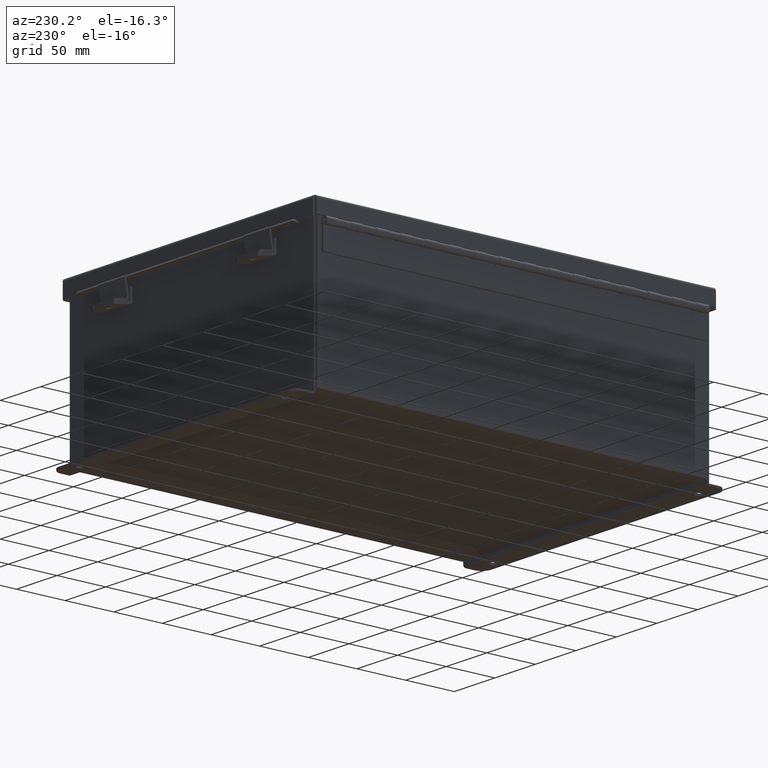
[diagram: clean part render]
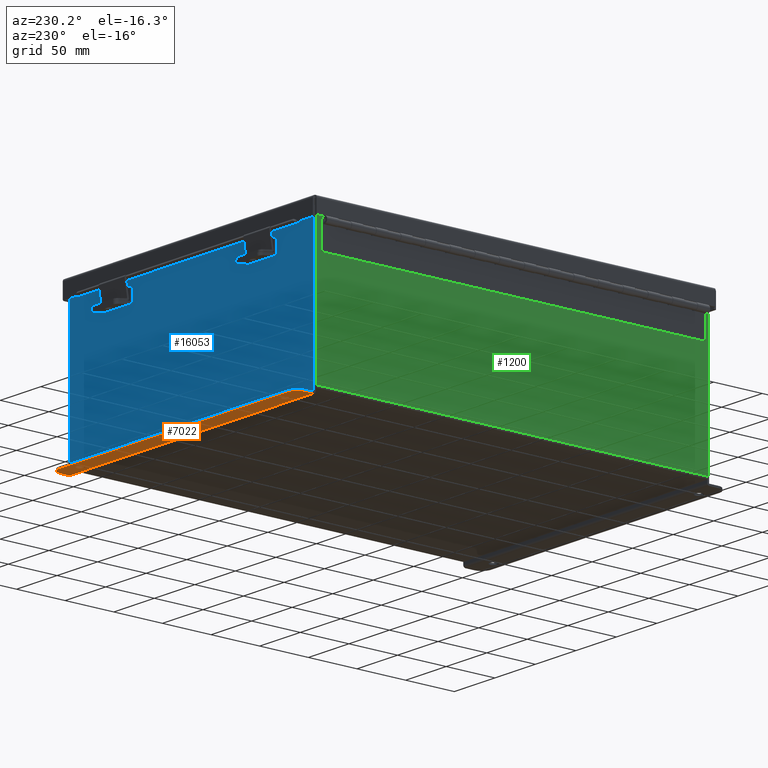
[diagram: same view with three faces highlighted in distinct colors, each labeled with its STEP entity id]
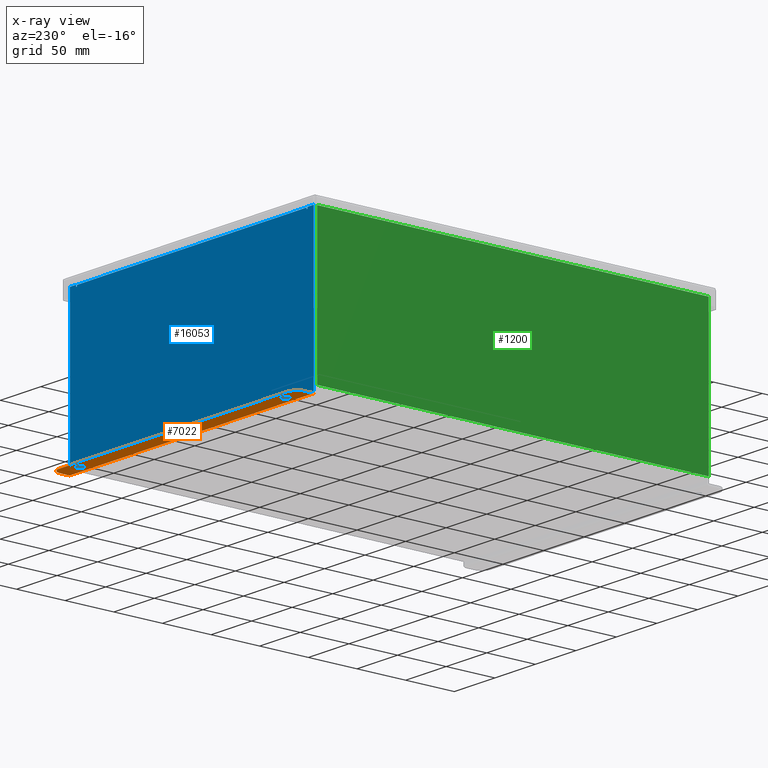
[diagram: x-ray of the same camera — body ghosted, the three highlighted faces saturated]
A machine part, auxiliary view with three faces highlighted in distinct colors.
The next image is the same camera in x-ray (body ghosted, the three faces saturated) — at least one of them is partly hidden behind the body in this view.
Their STEP definitions:

[orange] entity #7022 — the highlighted planar face has unit normal (0, 0, 1).
#155 = LINE ( 'NONE', #9661, #19866 ) ;
#272 = AXIS2_PLACEMENT_3D ( 'NONE', #4878, #6448, #17335 ) ;
#623 = VERTEX_POINT ( 'NONE', #7105 ) ;
#817 = CARTESIAN_POINT ( 'NONE',  ( -4.987800000000000900, 0.5187999999999999300, -3.187000000000001600 ) ) ;
#1073 = CARTESIAN_POINT ( 'NONE',  ( 5.550299999999999100, 0.7378000000000000100, -3.187000000000002900 ) ) ;
#1272 = ORIENTED_EDGE ( 'NONE', *, *, #8311, .T. ) ;
#1381 = EDGE_CURVE ( 'NONE', #17163, #11149, #16518, .T. ) ;
#1383 = ORIENTED_EDGE ( 'NONE', *, *, #16824, .T. ) ;
#1742 = VERTEX_POINT ( 'NONE', #5607 ) ;
#1805 = ORIENTED_EDGE ( 'NONE', *, *, #9340, .F. ) ;
#2214 = CIRCLE ( 'NONE', #12566, 0.1560000000000001900 ) ;
#2275 = CIRCLE ( 'NONE', #18430, 0.3750000000000000600 ) ;
#2625 = VERTEX_POINT ( 'NONE', #817 ) ;
#2628 = AXIS2_PLACEMENT_3D ( 'NONE', #13991, #4668, #15564 ) ;
#2710 = CARTESIAN_POINT ( 'NONE',  ( 4.987799999999998200, 0.5187999999999999300, -3.187000000000001600 ) ) ;
#3530 = DIRECTION ( 'NONE',  ( 0.0000000000000000000, -3.702694488566362300E-015, -1.000000000000000000 ) ) ;
#4027 = ORIENTED_EDGE ( 'NONE', *, *, #6646, .T. ) ;
#4214 = EDGE_CURVE ( 'NONE', #1742, #2625, #5197, .T. ) ;
#4438 = EDGE_LOOP ( 'NONE', ( #1383, #4027, #1272, #7700, #8093, #17056 ) ) ;
#4521 = FACE_BOUND ( 'NONE', #8711, .T. ) ;
#4586 = AXIS2_PLACEMENT_3D ( 'NONE', #15931, #6581, #17480 ) ;
#4668 = DIRECTION ( 'NONE',  ( 0.0000000000000000000, -3.702694488566362300E-015, -1.000000000000000000 ) ) ;
#4878 = CARTESIAN_POINT ( 'NONE',  ( 0.0000000000000000000, -1.092739197465705300E-014, -3.187000000000000300 ) ) ;
#4943 = EDGE_CURVE ( 'NONE', #19681, #19867, #2275, .T. ) ;
#5001 = FACE_OUTER_BOUND ( 'NONE', #4438, .T. ) ;
#5181 = DIRECTION ( 'NONE',  ( 1.000000000000000000, 0.0000000000000000000, -0.0000000000000000000 ) ) ;
#5197 = CIRCLE ( 'NONE', #4586, 0.1560000000000001900 ) ;
#5279 = CARTESIAN_POINT ( 'NONE',  ( -5.550299999999999100, 0.3627999999999997300, -3.187000000000001200 ) ) ;
#5497 = CARTESIAN_POINT ( 'NONE',  ( 5.550299999999999100, 0.3627999999999997300, -3.187000000000001200 ) ) ;
#5607 = CARTESIAN_POINT ( 'NONE',  ( -4.987800000000000900, 0.2067999999999996000, -3.187000000000000700 ) ) ;
#6238 = EDGE_CURVE ( 'NONE', #10296, #13554, #7561, .T. ) ;
#6293 = VERTEX_POINT ( 'NONE', #1073 ) ;
#6379 = CARTESIAN_POINT ( 'NONE',  ( 4.987799999999998200, 0.2067999999999996000, -3.187000000000000700 ) ) ;
#6393 = ORIENTED_EDGE ( 'NONE', *, *, #6238, .F. ) ;
#6448 = DIRECTION ( 'NONE',  ( 0.0000000000000000000, 3.702694488566362300E-015, 1.000000000000000000 ) ) ;
#6502 = EDGE_CURVE ( 'NONE', #17163, #19681, #19776, .T. ) ;
#6572 = EDGE_CURVE ( 'NONE', #13554, #10296, #2214, .T. ) ;
#6581 = DIRECTION ( 'NONE',  ( 0.0000000000000000000, -3.702694488566362300E-015, -1.000000000000000000 ) ) ;
#6646 = EDGE_CURVE ( 'NONE', #6293, #623, #17290, .T. ) ;
#6839 = DIRECTION ( 'NONE',  ( 0.0000000000000000000, -1.000000000000000000, 4.370956789862820400E-015 ) ) ;
#7022 = ADVANCED_FACE ( 'NONE', ( #4521, #16976, #5001 ), #15786, .F. ) ;
#7072 = DIRECTION ( 'NONE',  ( 0.0000000000000000000, -1.000000000000000000, 4.370956789862820400E-015 ) ) ;
#7105 = CARTESIAN_POINT ( 'NONE',  ( 5.925299999999999100, 0.3627999999999997300, -3.187000000000001200 ) ) ;
#7407 = LINE ( 'NONE', #16094, #19378 ) ;
#7561 = CIRCLE ( 'NONE', #7746, 0.1560000000000001900 ) ;
#7580 = EDGE_LOOP ( 'NONE', ( #6393, #13271 ) ) ;
#7630 = CARTESIAN_POINT ( 'NONE',  ( 5.925299999999999100, 0.01300000000000010700, -3.187000000000000300 ) ) ;
#7700 = ORIENTED_EDGE ( 'NONE', *, *, #1381, .F. ) ;
#7746 = AXIS2_PLACEMENT_3D ( 'NONE', #18049, #8709, #19647 ) ;
#8093 = ORIENTED_EDGE ( 'NONE', *, *, #6502, .T. ) ;
#8311 = EDGE_CURVE ( 'NONE', #623, #11149, #155, .T. ) ;
#8709 = DIRECTION ( 'NONE',  ( 0.0000000000000000000, -3.702694488566362300E-015, -1.000000000000000000 ) ) ;
#8711 = EDGE_LOOP ( 'NONE', ( #1805, #16993 ) ) ;
#9340 = EDGE_CURVE ( 'NONE', #2625, #1742, #10507, .T. ) ;
#9661 = CARTESIAN_POINT ( 'NONE',  ( 5.925299999999999100, -1.092739197465705300E-014, -3.187000000000000300 ) ) ;
#10296 = VERTEX_POINT ( 'NONE', #2710 ) ;
#10507 = CIRCLE ( 'NONE', #2628, 0.1560000000000001900 ) ;
#10856 = CARTESIAN_POINT ( 'NONE',  ( -5.550299999999999100, 0.7378000000000000100, -3.187000000000002900 ) ) ;
#11149 = VERTEX_POINT ( 'NONE', #7630 ) ;
#11424 = VECTOR ( 'NONE', #18576, 39.37007874015748100 ) ;
#11430 = DIRECTION ( 'NONE',  ( 1.000000000000000000, -0.0000000000000000000, -0.0000000000000000000 ) ) ;
#12340 = VECTOR ( 'NONE', #11430, 39.37007874015748100 ) ;
#12566 = AXIS2_PLACEMENT_3D ( 'NONE', #12834, #3530, #14410 ) ;
#12834 = CARTESIAN_POINT ( 'NONE',  ( 4.987799999999998200, 0.3627999999999997300, -3.187000000000001200 ) ) ;
#13271 = ORIENTED_EDGE ( 'NONE', *, *, #6572, .F. ) ;
#13554 = VERTEX_POINT ( 'NONE', #6379 ) ;
#13991 = CARTESIAN_POINT ( 'NONE',  ( -4.987800000000000900, 0.3627999999999997300, -3.187000000000001200 ) ) ;
#14410 = DIRECTION ( 'NONE',  ( 0.0000000000000000000, 1.000000000000000000, -3.502369222646487000E-015 ) ) ;
#15564 = DIRECTION ( 'NONE',  ( 0.0000000000000000000, 1.000000000000000000, -3.502369222646487000E-015 ) ) ;
#15786 = PLANE ( 'NONE',  #272 ) ;
#15931 = CARTESIAN_POINT ( 'NONE',  ( -4.987800000000000900, 0.3627999999999997300, -3.187000000000001200 ) ) ;
#16094 = CARTESIAN_POINT ( 'NONE',  ( 0.0000000000000000000, 0.7378000000000000100, -3.187000000000002900 ) ) ;
#16180 = DIRECTION ( 'NONE',  ( -0.0000000000000000000, -3.702694488566362300E-015, -1.000000000000000000 ) ) ;
#16412 = DIRECTION ( 'NONE',  ( -0.0000000000000000000, -3.702694488566362300E-015, -1.000000000000000000 ) ) ;
#16518 = LINE ( 'NONE', #19939, #12340 ) ;
#16824 = EDGE_CURVE ( 'NONE', #19867, #6293, #7407, .T. ) ;
#16976 = FACE_BOUND ( 'NONE', #7580, .T. ) ;
#16993 = ORIENTED_EDGE ( 'NONE', *, *, #4214, .F. ) ;
#17035 = CARTESIAN_POINT ( 'NONE',  ( -5.925300000000001800, -1.092739197465705300E-014, -3.187000000000000300 ) ) ;
#17056 = ORIENTED_EDGE ( 'NONE', *, *, #4943, .T. ) ;
#17163 = VERTEX_POINT ( 'NONE', #18399 ) ;
#17290 = CIRCLE ( 'NONE', #19932, 0.3750000000000000600 ) ;
#17335 = DIRECTION ( 'NONE',  ( 0.0000000000000000000, -1.000000000000000000, 3.702694488566362300E-015 ) ) ;
#17480 = DIRECTION ( 'NONE',  ( 0.0000000000000000000, 1.000000000000000000, -3.502369222646487000E-015 ) ) ;
#18049 = CARTESIAN_POINT ( 'NONE',  ( 4.987799999999998200, 0.3627999999999997300, -3.187000000000001200 ) ) ;
#18242 = CARTESIAN_POINT ( 'NONE',  ( -5.925300000000001800, 0.3627999999999997300, -3.187000000000001200 ) ) ;
#18399 = CARTESIAN_POINT ( 'NONE',  ( -5.925300000000000000, 0.01300000000000010700, -3.187000000000000300 ) ) ;
#18430 = AXIS2_PLACEMENT_3D ( 'NONE', #5279, #16180, #6839 ) ;
#18576 = DIRECTION ( 'NONE',  ( 0.0000000000000000000, 1.000000000000000000, -3.702694488566362300E-015 ) ) ;
#19079 = DIRECTION ( 'NONE',  ( 0.0000000000000000000, -1.000000000000000000, 3.702694488566362300E-015 ) ) ;
#19378 = VECTOR ( 'NONE', #5181, 39.37007874015748100 ) ;
#19647 = DIRECTION ( 'NONE',  ( 0.0000000000000000000, 1.000000000000000000, -3.502369222646487000E-015 ) ) ;
#19681 = VERTEX_POINT ( 'NONE', #18242 ) ;
#19776 = LINE ( 'NONE', #17035, #11424 ) ;
#19866 = VECTOR ( 'NONE', #19079, 39.37007874015748100 ) ;
#19867 = VERTEX_POINT ( 'NONE', #10856 ) ;
#19932 = AXIS2_PLACEMENT_3D ( 'NONE', #5497, #16412, #7072 ) ;
#19939 = CARTESIAN_POINT ( 'NONE',  ( 5.925299999999999100, 0.01300000000000010700, -3.187000000000000300 ) ) ;

[blue] entity #16053 — the highlighted planar face has unit normal (0, -1, 0).
#198 = ORIENTED_EDGE ( 'NONE', *, *, #8963, .F. ) ;
#583 = DIRECTION ( 'NONE',  ( 0.0000000000000000000, 0.0000000000000000000, -1.000000000000000000 ) ) ;
#691 = VECTOR ( 'NONE', #9416, 39.37007874015748100 ) ;
#709 = EDGE_CURVE ( 'NONE', #12365, #14331, #2411, .T. ) ;
#714 = VECTOR ( 'NONE', #9046, 39.37007874015748100 ) ;
#843 = CARTESIAN_POINT ( 'NONE',  ( -5.619650000000000000, 0.0000000000000000000, 0.0000000000000000000 ) ) ;
#963 = VERTEX_POINT ( 'NONE', #17789 ) ;
#1199 = ORIENTED_EDGE ( 'NONE', *, *, #2086, .T. ) ;
#1333 = CIRCLE ( 'NONE', #12848, 0.01867500000000003900 ) ;
#1550 = DIRECTION ( 'NONE',  ( 1.000000000000000000, 0.0000000000000000000, 0.0000000000000000000 ) ) ;
#1580 = EDGE_CURVE ( 'NONE', #7307, #14481, #5281, .T. ) ;
#1697 = VERTEX_POINT ( 'NONE', #10532 ) ;
#2003 = CARTESIAN_POINT ( 'NONE',  ( 5.582299999999999200, 0.0000000000000000000, 0.0000000000000000000 ) ) ;
#2076 = CARTESIAN_POINT ( 'NONE',  ( -5.582300000000000900, 2.185478394931410600E-015, 2.912299999999999200 ) ) ;
#2086 = EDGE_CURVE ( 'NONE', #14481, #14331, #14520, .T. ) ;
#2242 = CARTESIAN_POINT ( 'NONE',  ( 5.619649999999937000, 0.0000000000000000000, -1.218404205174261500E-013 ) ) ;
#2411 = LINE ( 'NONE', #11970, #7028 ) ;
#2505 = EDGE_CURVE ( 'NONE', #3242, #8617, #9852, .T. ) ;
#2556 = CARTESIAN_POINT ( 'NONE',  ( -5.925300000000001800, 0.0000000000000000000, 2.925299999999999600 ) ) ;
#2580 = CARTESIAN_POINT ( 'NONE',  ( 5.619650000000000000, 0.0000000000000000000, 2.925299999999999600 ) ) ;
#2723 = ORIENTED_EDGE ( 'NONE', *, *, #709, .F. ) ;
#2831 = EDGE_CURVE ( 'NONE', #7307, #19342, #13277, .T. ) ;
#2875 = LINE ( 'NONE', #2076, #19457 ) ;
#3172 = ORIENTED_EDGE ( 'NONE', *, *, #11152, .T. ) ;
#3242 = VERTEX_POINT ( 'NONE', #13608 ) ;
#3347 = VECTOR ( 'NONE', #12867, 39.37007874015748100 ) ;
#3448 = DIRECTION ( 'NONE',  ( 0.0000000000000000000, -1.000000000000000000, 0.0000000000000000000 ) ) ;
#3579 = CARTESIAN_POINT ( 'NONE',  ( 5.925299999999999100, 0.0000000000000000000, -3.099299999999999900 ) ) ;
#4101 = ORIENTED_EDGE ( 'NONE', *, *, #14871, .F. ) ;
#4759 = AXIS2_PLACEMENT_3D ( 'NONE', #12754, #3448, #14330 ) ;
#4921 = CIRCLE ( 'NONE', #19050, 0.01867500000000003900 ) ;
#5281 = LINE ( 'NONE', #8892, #714 ) ;
#5285 = ORIENTED_EDGE ( 'NONE', *, *, #5619, .T. ) ;
#5461 = ORIENTED_EDGE ( 'NONE', *, *, #2505, .F. ) ;
#5619 = EDGE_CURVE ( 'NONE', #12365, #963, #9049, .T. ) ;
#5775 = CARTESIAN_POINT ( 'NONE',  ( -5.582300000000000000, 0.0000000000000000000, 0.0000000000000000000 ) ) ;
#6154 = ORIENTED_EDGE ( 'NONE', *, *, #17873, .F. ) ;
#6241 = VERTEX_POINT ( 'NONE', #16500 ) ;
#6481 = ORIENTED_EDGE ( 'NONE', *, *, #6768, .F. ) ;
#6768 = EDGE_CURVE ( 'NONE', #6241, #19986, #15359, .T. ) ;
#7028 = VECTOR ( 'NONE', #16579, 39.37007874015748100 ) ;
#7196 = FACE_OUTER_BOUND ( 'NONE', #15381, .T. ) ;
#7307 = VERTEX_POINT ( 'NONE', #2580 ) ;
#7411 = ORIENTED_EDGE ( 'NONE', *, *, #2831, .F. ) ;
#7699 = CARTESIAN_POINT ( 'NONE',  ( -5.925300000000001800, 0.0000000000000000000, 2.925299999999999600 ) ) ;
#7801 = DIRECTION ( 'NONE',  ( -0.0000000000000000000, 1.000000000000000000, -0.0000000000000000000 ) ) ;
#7894 = CARTESIAN_POINT ( 'NONE',  ( 5.619649999999998300, 0.0000000000000000000, 2.874949999999998300 ) ) ;
#8235 = VECTOR ( 'NONE', #1550, 39.37007874015748100 ) ;
#8617 = VERTEX_POINT ( 'NONE', #13413 ) ;
#8823 = DIRECTION ( 'NONE',  ( 0.0000000000000000000, 0.0000000000000000000, -1.000000000000000000 ) ) ;
#8892 = CARTESIAN_POINT ( 'NONE',  ( -5.925300000000001800, 0.0000000000000000000, 2.925299999999999600 ) ) ;
#8963 = EDGE_CURVE ( 'NONE', #19342, #16950, #4921, .T. ) ;
#9046 = DIRECTION ( 'NONE',  ( 1.000000000000000000, 0.0000000000000000000, 0.0000000000000000000 ) ) ;
#9049 = LINE ( 'NONE', #2556, #12681 ) ;
#9416 = DIRECTION ( 'NONE',  ( 0.0000000000000000000, 0.0000000000000000000, -1.000000000000000000 ) ) ;
#9535 = DIRECTION ( 'NONE',  ( -2.170286390199955400E-014, 0.0000000000000000000, -1.000000000000000000 ) ) ;
#9843 = DIRECTION ( 'NONE',  ( -0.0000000000000000000, 1.000000000000000000, -0.0000000000000000000 ) ) ;
#9852 = LINE ( 'NONE', #843, #13528 ) ;
#10283 = DIRECTION ( 'NONE',  ( -0.0000000000000000000, -0.0000000000000000000, 1.000000000000000000 ) ) ;
#10532 = CARTESIAN_POINT ( 'NONE',  ( 5.582299999999999200, 0.0000000000000000000, 2.912299999999999200 ) ) ;
#11152 = EDGE_CURVE ( 'NONE', #963, #8617, #12394, .T. ) ;
#11173 = PLANE ( 'NONE',  #4759 ) ;
#11351 = DIRECTION ( 'NONE',  ( 1.000000000000000000, 0.0000000000000000000, 0.0000000000000000000 ) ) ;
#11612 = LINE ( 'NONE', #2003, #3347 ) ;
#11970 = CARTESIAN_POINT ( 'NONE',  ( -5.925300000000001800, 0.0000000000000000000, -3.099299999999999900 ) ) ;
#12165 = VECTOR ( 'NONE', #8823, 39.37007874015748100 ) ;
#12277 = VECTOR ( 'NONE', #9535, 39.37007874015748100 ) ;
#12365 = VERTEX_POINT ( 'NONE', #18558 ) ;
#12394 = LINE ( 'NONE', #7699, #8235 ) ;
#12681 = VECTOR ( 'NONE', #10283, 39.37007874015748100 ) ;
#12754 = CARTESIAN_POINT ( 'NONE',  ( 0.0000000000000000000, 0.0000000000000000000, 0.0000000000000000000 ) ) ;
#12848 = AXIS2_PLACEMENT_3D ( 'NONE', #17146, #7801, #18708 ) ;
#12867 = DIRECTION ( 'NONE',  ( 0.0000000000000000000, 0.0000000000000000000, 1.000000000000000000 ) ) ;
#13277 = LINE ( 'NONE', #2242, #12277 ) ;
#13413 = CARTESIAN_POINT ( 'NONE',  ( -5.619650000000000000, 0.0000000000000000000, 2.925299999999999600 ) ) ;
#13528 = VECTOR ( 'NONE', #14757, 39.37007874015748100 ) ;
#13608 = CARTESIAN_POINT ( 'NONE',  ( -5.619650000000000000, 0.0000000000000000000, 2.874949999999998300 ) ) ;
#14257 = CARTESIAN_POINT ( 'NONE',  ( -5.582300000000000000, 0.0000000000000000000, 2.874949999999998300 ) ) ;
#14330 = DIRECTION ( 'NONE',  ( 0.0000000000000000000, -0.0000000000000000000, -1.000000000000000000 ) ) ;
#14331 = VERTEX_POINT ( 'NONE', #3579 ) ;
#14481 = VERTEX_POINT ( 'NONE', #19535 ) ;
#14520 = LINE ( 'NONE', #15695, #691 ) ;
#14607 = ORIENTED_EDGE ( 'NONE', *, *, #1580, .T. ) ;
#14757 = DIRECTION ( 'NONE',  ( 0.0000000000000000000, 0.0000000000000000000, 1.000000000000000000 ) ) ;
#14804 = CARTESIAN_POINT ( 'NONE',  ( 5.582299999999999200, 0.0000000000000000000, 2.874949999999998300 ) ) ;
#14871 = EDGE_CURVE ( 'NONE', #16950, #1697, #11612, .T. ) ;
#14901 = EDGE_CURVE ( 'NONE', #6241, #1697, #2875, .T. ) ;
#15359 = LINE ( 'NONE', #5775, #12165 ) ;
#15381 = EDGE_LOOP ( 'NONE', ( #5461, #6154, #6481, #19037, #4101, #198, #7411, #14607, #1199, #2723, #5285, #3172 ) ) ;
#15695 = CARTESIAN_POINT ( 'NONE',  ( 5.925299999999999100, 0.0000000000000000000, 2.925299999999999600 ) ) ;
#16053 = ADVANCED_FACE ( 'NONE', ( #7196 ), #11173, .F. ) ;
#16500 = CARTESIAN_POINT ( 'NONE',  ( -5.582300000000000000, 2.185478394931410600E-015, 2.912299999999999200 ) ) ;
#16579 = DIRECTION ( 'NONE',  ( 1.000000000000000000, -0.0000000000000000000, -0.0000000000000000000 ) ) ;
#16950 = VERTEX_POINT ( 'NONE', #14804 ) ;
#17146 = CARTESIAN_POINT ( 'NONE',  ( -5.600975000000000000, 0.0000000000000000000, 2.874949999999998300 ) ) ;
#17789 = CARTESIAN_POINT ( 'NONE',  ( -5.925300000000001800, 0.0000000000000000000, 2.925299999999999600 ) ) ;
#17873 = EDGE_CURVE ( 'NONE', #19986, #3242, #1333, .T. ) ;
#18558 = CARTESIAN_POINT ( 'NONE',  ( -5.925300000000000000, 0.0000000000000000000, -3.099299999999999900 ) ) ;
#18708 = DIRECTION ( 'NONE',  ( 0.0000000000000000000, 0.0000000000000000000, -1.000000000000000000 ) ) ;
#19037 = ORIENTED_EDGE ( 'NONE', *, *, #14901, .T. ) ;
#19050 = AXIS2_PLACEMENT_3D ( 'NONE', #19205, #9843, #583 ) ;
#19205 = CARTESIAN_POINT ( 'NONE',  ( 5.600974999999998300, 0.0000000000000000000, 2.874949999999998300 ) ) ;
#19342 = VERTEX_POINT ( 'NONE', #7894 ) ;
#19457 = VECTOR ( 'NONE', #11351, 39.37007874015748100 ) ;
#19535 = CARTESIAN_POINT ( 'NONE',  ( 5.925299999999999100, 0.0000000000000000000, 2.925299999999999600 ) ) ;
#19986 = VERTEX_POINT ( 'NONE', #14257 ) ;

[green] entity #1200 — the highlighted planar face has unit normal (1, 0, 0).
#190 = CARTESIAN_POINT ( 'NONE',  ( -6.000000000000000900, -7.925300000000000000, -2.007054572845213300E-014 ) ) ;
#267 = CARTESIAN_POINT ( 'NONE',  ( -6.000000000000021300, 7.925299999999996500, 5.837600000000000100 ) ) ;
#1200 = ADVANCED_FACE ( 'NONE', ( #11109 ), #2823, .F. ) ;
#2280 = VERTEX_POINT ( 'NONE', #4381 ) ;
#2504 = LINE ( 'NONE', #8321, #9304 ) ;
#2823 = PLANE ( 'NONE',  #7771 ) ;
#3198 = VERTEX_POINT ( 'NONE', #8472 ) ;
#3245 = VERTEX_POINT ( 'NONE', #15073 ) ;
#3562 = EDGE_CURVE ( 'NONE', #11275, #3245, #12282, .T. ) ;
#3585 = DIRECTION ( 'NONE',  ( -0.0000000000000000000, 1.000000000000000000, -0.0000000000000000000 ) ) ;
#4381 = CARTESIAN_POINT ( 'NONE',  ( -6.000000000000000900, -7.925300000000000000, 0.01299999999999984300 ) ) ;
#4412 = CARTESIAN_POINT ( 'NONE',  ( -6.000000000000021300, -7.925299999999996500, 5.837600000000000100 ) ) ;
#4697 = VECTOR ( 'NONE', #5996, 39.37007874015748100 ) ;
#5179 = LINE ( 'NONE', #4412, #4697 ) ;
#5996 = DIRECTION ( 'NONE',  ( 0.0000000000000000000, 1.000000000000000000, 0.0000000000000000000 ) ) ;
#6397 = EDGE_LOOP ( 'NONE', ( #13700, #15898, #15333, #17800 ) ) ;
#7681 = DIRECTION ( 'NONE',  ( 3.548703509357741800E-015, 0.0000000000000000000, -1.000000000000000000 ) ) ;
#7771 = AXIS2_PLACEMENT_3D ( 'NONE', #12734, #18692, #7681 ) ;
#8321 = CARTESIAN_POINT ( 'NONE',  ( -6.000000000000000900, 7.925299999999998200, 0.01299999999999984300 ) ) ;
#8472 = CARTESIAN_POINT ( 'NONE',  ( -6.000000000000021300, -7.925299999999995600, 5.837600000000000100 ) ) ;
#8724 = EDGE_CURVE ( 'NONE', #3198, #11275, #5179, .T. ) ;
#9304 = VECTOR ( 'NONE', #3585, 39.37007874015748100 ) ;
#9502 = DIRECTION ( 'NONE',  ( -3.548703509357741800E-015, 1.867738689135653700E-016, 1.000000000000000000 ) ) ;
#9805 = DIRECTION ( 'NONE',  ( 3.548703509357741800E-015, 0.0000000000000000000, -1.000000000000000000 ) ) ;
#11109 = FACE_OUTER_BOUND ( 'NONE', #6397, .T. ) ;
#11275 = VERTEX_POINT ( 'NONE', #267 ) ;
#11356 = CARTESIAN_POINT ( 'NONE',  ( -6.000000000000000900, 7.925299999999998200, -2.155598807500707700E-014 ) ) ;
#11667 = LINE ( 'NONE', #190, #14860 ) ;
#11774 = EDGE_CURVE ( 'NONE', #2280, #3198, #11667, .T. ) ;
#12282 = LINE ( 'NONE', #11356, #20132 ) ;
#12734 = CARTESIAN_POINT ( 'NONE',  ( -6.000000000000000900, 0.0000000000000000000, -2.155598807500707700E-014 ) ) ;
#13700 = ORIENTED_EDGE ( 'NONE', *, *, #8724, .T. ) ;
#14860 = VECTOR ( 'NONE', #9502, 39.37007874015748100 ) ;
#15073 = CARTESIAN_POINT ( 'NONE',  ( -6.000000000000000900, 7.925299999999998200, 0.01299999999999984300 ) ) ;
#15333 = ORIENTED_EDGE ( 'NONE', *, *, #18133, .F. ) ;
#15898 = ORIENTED_EDGE ( 'NONE', *, *, #3562, .T. ) ;
#17800 = ORIENTED_EDGE ( 'NONE', *, *, #11774, .T. ) ;
#18133 = EDGE_CURVE ( 'NONE', #2280, #3245, #2504, .T. ) ;
#18692 = DIRECTION ( 'NONE',  ( 1.000000000000000000, 0.0000000000000000000, 3.548703509357741800E-015 ) ) ;
#20132 = VECTOR ( 'NONE', #9805, 39.37007874015748100 ) ;